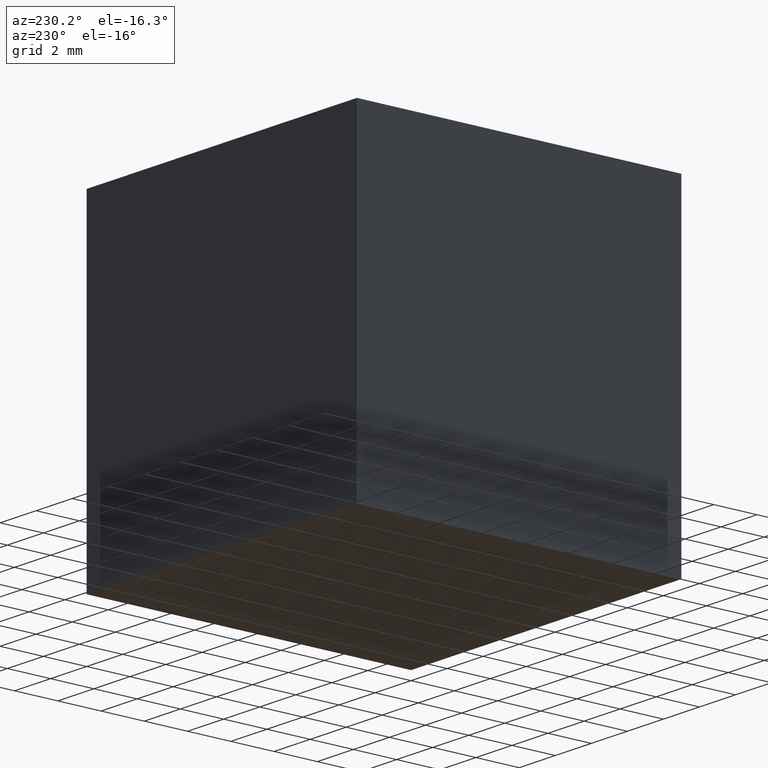
[diagram: clean part render]
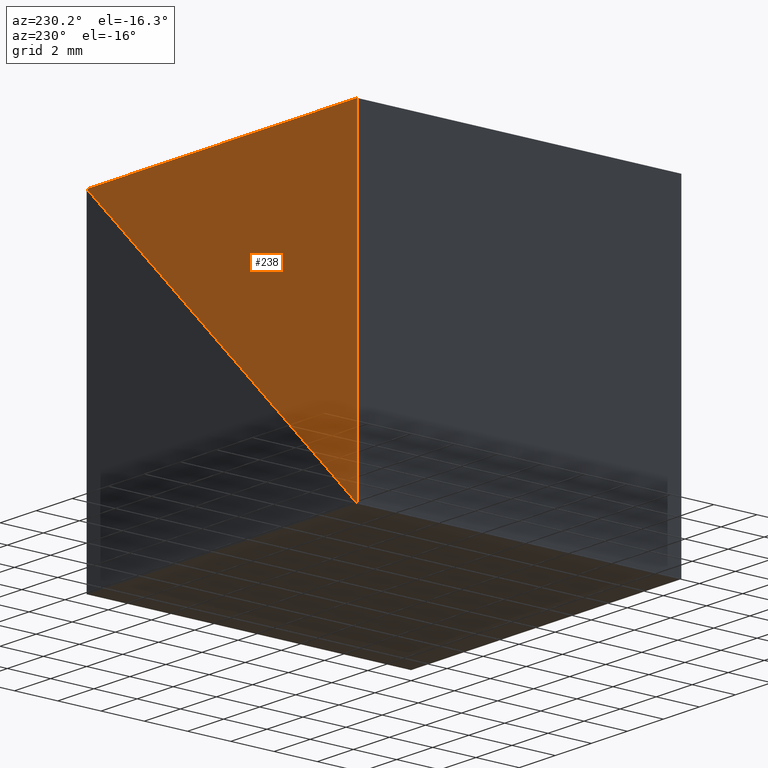
[diagram: same view with one face highlighted and labeled with its STEP entity id]
A machine part, auxiliary view. The second image highlights one B-rep face of the part: STEP entity #238.
In plain terms, the highlighted planar face has unit normal (0, 1, 0).
Its self-contained STEP definition (entity closure, byte-faithful):
#3 = CARTESIAN_POINT ( 'NONE',  ( -15.00000000000000000, 15.00000000000000000, 0.0000000000000000000 ) ) ;
#10 = AXIS2_PLACEMENT_3D ( 'NONE', #201, #184, #31 ) ;
#22 = LINE ( 'NONE', #3, #135 ) ;
#26 = EDGE_CURVE ( 'NONE', #62, #136, #261, .T. ) ;
#29 = VECTOR ( 'NONE', #222, 1000.000000000000000 ) ;
#31 = DIRECTION ( 'NONE',  ( 0.0000000000000000000, -0.0000000000000000000, 1.000000000000000000 ) ) ;
#38 = EDGE_LOOP ( 'NONE', ( #52, #87, #237 ) ) ;
#49 = PLANE ( 'NONE',  #10 ) ;
#52 = ORIENTED_EDGE ( 'NONE', *, *, #26, .F. ) ;
#62 = VERTEX_POINT ( 'NONE', #154 ) ;
#87 = ORIENTED_EDGE ( 'NONE', *, *, #290, .F. ) ;
#127 = CARTESIAN_POINT ( 'NONE',  ( 0.0000000000000000000, 15.00000000000000000, 0.0000000000000000000 ) ) ;
#135 = VECTOR ( 'NONE', #208, 1000.000000000000000 ) ;
#136 = VERTEX_POINT ( 'NONE', #246 ) ;
#154 = CARTESIAN_POINT ( 'NONE',  ( -15.00000000000000000, 15.00000000000000000, -14.99999999999999600 ) ) ;
#164 = VECTOR ( 'NONE', #300, 1000.000000000000000 ) ;
#178 = CARTESIAN_POINT ( 'NONE',  ( -15.00000000000000000, 15.00000000000000000, -14.99999999999999600 ) ) ;
#179 = VERTEX_POINT ( 'NONE', #244 ) ;
#184 = DIRECTION ( 'NONE',  ( 0.0000000000000000000, 1.000000000000000000, 0.0000000000000000000 ) ) ;
#186 = FACE_OUTER_BOUND ( 'NONE', #38, .T. ) ;
#201 = CARTESIAN_POINT ( 'NONE',  ( 0.0000000000000000000, 15.00000000000000000, 0.0000000000000000000 ) ) ;
#208 = DIRECTION ( 'NONE',  ( -1.000000000000000000, -0.0000000000000000000, -0.0000000000000000000 ) ) ;
#222 = DIRECTION ( 'NONE',  ( 0.7071067811865476800, 0.0000000000000000000, 0.7071067811865474600 ) ) ;
#225 = LINE ( 'NONE', #178, #164 ) ;
#237 = ORIENTED_EDGE ( 'NONE', *, *, #245, .F. ) ;
#238 = ADVANCED_FACE ( 'NONE', ( #186 ), #49, .T. ) ;
#244 = CARTESIAN_POINT ( 'NONE',  ( -15.00000000000000000, 15.00000000000000000, 0.0000000000000000000 ) ) ;
#245 = EDGE_CURVE ( 'NONE', #136, #179, #22, .T. ) ;
#246 = CARTESIAN_POINT ( 'NONE',  ( 0.0000000000000000000, 15.00000000000000000, 0.0000000000000000000 ) ) ;
#261 = LINE ( 'NONE', #127, #29 ) ;
#290 = EDGE_CURVE ( 'NONE', #179, #62, #225, .T. ) ;
#300 = DIRECTION ( 'NONE',  ( -0.0000000000000000000, -0.0000000000000000000, -1.000000000000000000 ) ) ;